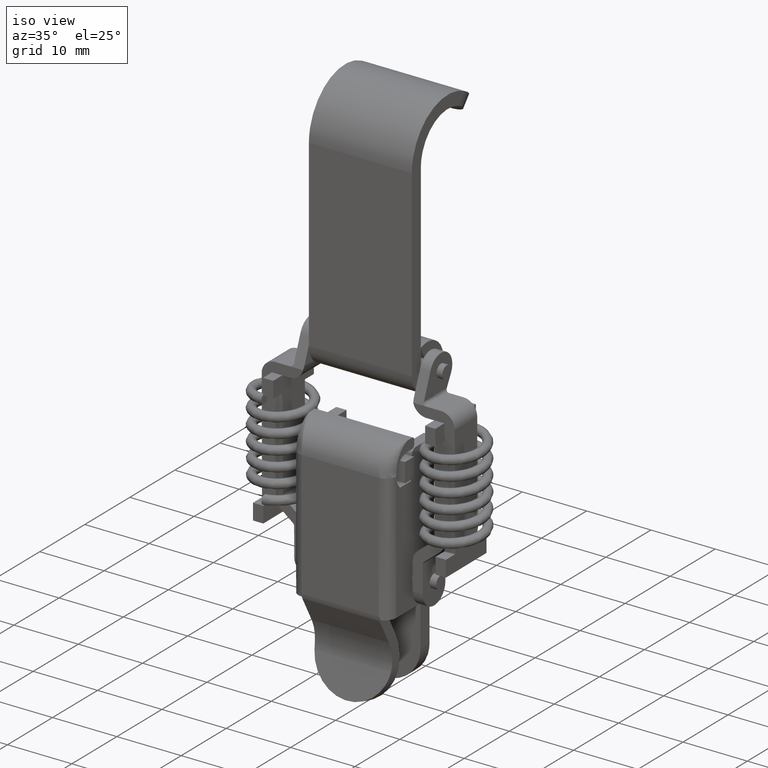
[diagram: clean part render]
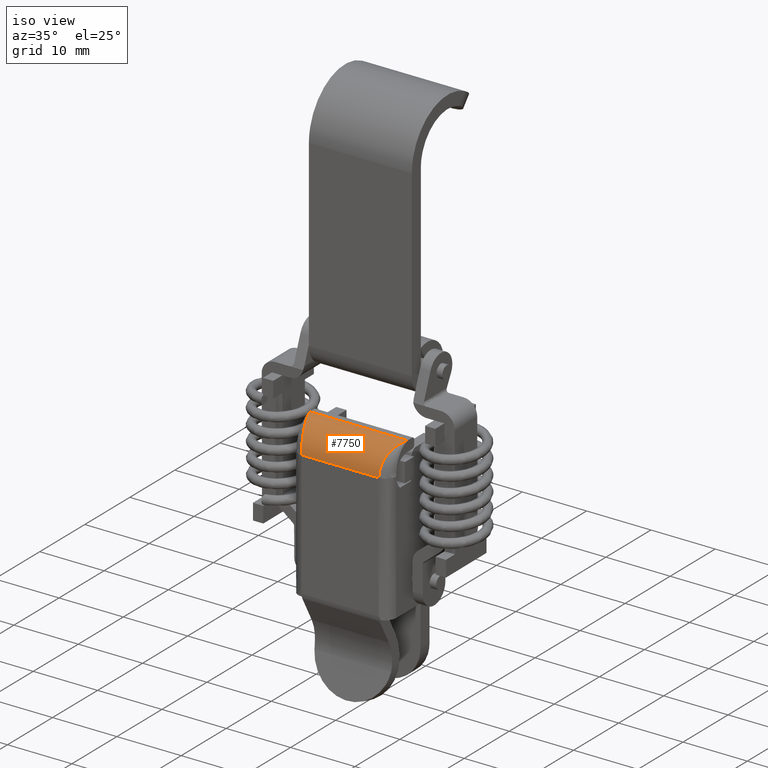
[diagram: same view with one face highlighted and labeled with its STEP entity id]
A machine part, iso view. The second image highlights one B-rep face of the part: STEP entity #7750.
In plain terms, the highlighted face is a freeform B-spline surface patch.
Its self-contained STEP definition (entity closure, byte-faithful):
#6743=CARTESIAN_POINT('',(-6.000006000000000,-9.0,-13.100005999999841));
#6744=VERTEX_POINT('',#6743);
#6759=CARTESIAN_POINT('',(5.999991000000000,-9.0,-13.100005999999841));
#6760=VERTEX_POINT('',#6759);
#6766=CARTESIAN_POINT('',(5.999991000000000,-9.0,-13.100005999999841));
#6767=CARTESIAN_POINT('',(-6.000006000000000,-9.0,-13.100005999999841));
#6768=QUASI_UNIFORM_CURVE('',1,(#6766,#6767),.UNSPECIFIED.,.F.,.U.);
#6769=EDGE_CURVE('',#6760,#6744,#6768,.T.);
#7167=CARTESIAN_POINT('',(7.599991000000000,-4.900000000000000,-9.000005999999850));
#7168=VERTEX_POINT('',#7167);
#7413=CARTESIAN_POINT('',(-7.600006000000001,-4.900000000000000,-9.000005999999850));
#7414=VERTEX_POINT('',#7413);
#7415=CARTESIAN_POINT('',(-7.600005999999993,-4.899999999999983,-9.000005999999839));
#7416=CARTESIAN_POINT('',(-7.596693890594399,-4.908888356679485,-9.000022670891203));
#7417=CARTESIAN_POINT('',(-7.590111405997187,-4.926553072355416,-9.000055802612472));
#7418=CARTESIAN_POINT('',(-7.580302454268716,-4.952881851192892,-9.000321231199486));
#7419=CARTESIAN_POINT('',(-7.570620307443866,-4.978873103046476,-9.000737076669058));
#7420=CARTESIAN_POINT('',(-7.561065115764546,-5.004525941605741,-9.001312329969361));
#7421=CARTESIAN_POINT('',(-7.551636839730702,-5.029839488351154,-9.002036630479923));
#7422=CARTESIAN_POINT('',(-7.542335489704995,-5.054812959125870,-9.002904801528102));
#7423=CARTESIAN_POINT('',(-7.533161062948525,-5.079445638189177,-9.003910403833242));
#7424=CARTESIAN_POINT('',(-7.524113560162840,-5.103736881871618,-9.005047429968885));
#7425=CARTESIAN_POINT('',(-7.515192981144504,-5.127686114489113,-9.006309860126594));
#7426=CARTESIAN_POINT('',(-7.506399325927428,-5.151292826327655,-9.007691779512381));
#7427=CARTESIAN_POINT('',(-7.497732594481271,-5.174556571120426,-9.009187348229064));
#7428=CARTESIAN_POINT('',(-7.489192786792039,-5.197476963697457,-9.010790809828270));
#7429=CARTESIAN_POINT('',(-7.480779902839703,-5.220053677627497,-9.012496489666123));
#7430=CARTESIAN_POINT('',(-7.472493942604197,-5.242286442901574,-9.014298795886436));
#7431=CARTESIAN_POINT('',(-7.464334906064655,-5.264175043645612,-9.016192219669239));
#7432=CARTESIAN_POINT('',(-7.456302793198279,-5.285719315864774,-9.018171335627836));
#7433=CARTESIAN_POINT('',(-7.448397603980527,-5.306919145220591,-9.020230802124617));
#7434=CARTESIAN_POINT('',(-7.440619338386398,-5.327774464841107,-9.022365361567410));
#7435=CARTESIAN_POINT('',(-7.432967996387400,-5.348285253162145,-9.024569840671578));
#7436=CARTESIAN_POINT('',(-7.425443577955952,-5.368451531804928,-9.026839150693776));
#7437=CARTESIAN_POINT('',(-7.418046083059644,-5.388273363483003,-9.029168287636610));
#7438=CARTESIAN_POINT('',(-7.410775511665618,-5.407750849946955,-9.031552332426696));
#7439=CARTESIAN_POINT('',(-7.403631863738033,-5.426884129960148,-9.033986451066410));
#7440=CARTESIAN_POINT('',(-7.396615139238819,-5.445673377310051,-9.036465894760912));
#7441=CARTESIAN_POINT('',(-7.389725338126987,-5.464118798853279,-9.038986000021543));
#7442=CARTESIAN_POINT('',(-7.382962460358134,-5.482220632595117,-9.041542188746487));
#7443=CARTESIAN_POINT('',(-7.376326505884775,-5.499979145803922,-9.044129968280206));
#7444=CARTESIAN_POINT('',(-7.369817474656367,-5.517394633160181,-9.046744931452318));
#7445=CARTESIAN_POINT('',(-7.363435366617413,-5.534467414939885,-9.049382756597199));
#7446=CARTESIAN_POINT('',(-7.357180181708732,-5.551197835233261,-9.052039207555310));
#7447=CARTESIAN_POINT('',(-7.351051919863048,-5.567586260198777,-9.054710133657423));
#7448=CARTESIAN_POINT('',(-7.345050581022917,-5.583633076352006,-9.057391469692179));
#7449=CARTESIAN_POINT('',(-7.339176165067212,-5.599338688886494,-9.060079235859401));
#7450=CARTESIAN_POINT('',(-7.333428672076933,-5.614703520044442,-9.062769537705984));
#7451=CARTESIAN_POINT('',(-7.327808101371881,-5.629728007468172,-9.065458566059409));
#7452=CARTESIAN_POINT('',(-7.322314454985170,-5.644412602782611,-9.068142596909322));
#7453=CARTESIAN_POINT('',(-7.316947725122940,-5.658757769507857,-9.070817991420256));
#7454=CARTESIAN_POINT('',(-7.311707939376378,-5.672763983546375,-9.073481195418683));
#7455=CARTESIAN_POINT('',(-7.306594997810037,-5.686431724557152,-9.076128740727020));
#7456=CARTESIAN_POINT('',(-7.276581779334585,-5.766674498065920,-9.091951816821689));
#7457=CARTESIAN_POINT('',(-7.223247086222714,-5.909184682604119,-9.124254624162338));
#7458=CARTESIAN_POINT('',(-7.148522520338159,-6.108323794085978,-9.180380442725451));
#7459=CARTESIAN_POINT('',(-7.078669974989973,-6.293879409891073,-9.242656108304720));
#7460=CARTESIAN_POINT('',(-6.985353315507398,-6.540986439251298,-9.338543222054010));
#7461=CARTESIAN_POINT('',(-6.872256146557454,-6.839038379838698,-9.480026396532805));
#7462=CARTESIAN_POINT('',(-6.738902666542665,-7.186957109845766,-9.689233857612630));
#7463=CARTESIAN_POINT('',(-6.615026621882430,-7.506805504641637,-9.926887892670164));
#7464=CARTESIAN_POINT('',(-6.497202087292642,-7.806908281168445,-10.199375504007611));
#7465=CARTESIAN_POINT('',(-6.390336049923561,-8.075218294394988,-10.495755289989910));
#7466=CARTESIAN_POINT('',(-6.308813880210643,-8.276350275143445,-10.767305309492400));
#7467=CARTESIAN_POINT('',(-6.249897272369816,-8.419797882822083,-10.994076449038751));
#7468=CARTESIAN_POINT('',(-6.208503343218709,-8.519572365111410,-11.170704000223999));
#7469=CARTESIAN_POINT('',(-6.170924904584524,-8.609193571650094,-11.349295616501990));
#7470=CARTESIAN_POINT('',(-6.136508848931447,-8.690387244606479,-11.532707201429950));
#7471=CARTESIAN_POINT('',(-6.105456501723548,-8.762840914695161,-11.720760721044480));
#7472=CARTESIAN_POINT('',(-6.077967977978958,-8.826204581347234,-11.913234336450280));
#7473=CARTESIAN_POINT('',(-6.054610090530375,-8.879363101945787,-12.106105485951881));
#7474=CARTESIAN_POINT('',(-6.039919493380513,-8.912361537554032,-12.253348120600920));
#7475=CARTESIAN_POINT('',(-6.031266337556853,-8.931653914460471,-12.353839932161060));
#7476=CARTESIAN_POINT('',(-6.026953697749842,-8.941234987557413,-12.407610683857200));
#7477=CARTESIAN_POINT('',(-6.022960455516358,-8.950074307544819,-12.461348168436951));
#7478=CARTESIAN_POINT('',(-6.019286581457584,-8.958176614647940,-12.515042248007450));
#7479=CARTESIAN_POINT('',(-6.015932083940743,-8.965546658799669,-12.568682472488311));
#7480=CARTESIAN_POINT('',(-6.012896960313579,-8.972189354613057,-12.622258662911580));
#7481=CARTESIAN_POINT('',(-6.010181214410975,-8.978109726114875,-12.675760757102911));
#7482=CARTESIAN_POINT('',(-6.007784835182820,-8.983312952157121,-12.729178851940370));
#7483=CARTESIAN_POINT('',(-6.005707864428592,-8.987804219350419,-12.782503193112071));
#7484=CARTESIAN_POINT('',(-6.003950148316327,-8.991589241636252,-12.835724178779470));
#7485=CARTESIAN_POINT('',(-6.002512259522667,-8.994672316683621,-12.888832359469180));
#7486=CARTESIAN_POINT('',(-6.001392072097813,-8.997063528499147,-12.941818438802020));
#7487=CARTESIAN_POINT('',(-6.000597484782051,-8.998751975820996,-12.994673274227640));
#7488=CARTESIAN_POINT('',(-6.000099155782209,-8.999805208533179,-13.047387876516080));
#7489=CARTESIAN_POINT('',(-6.000037020513735,-8.999935135197886,-13.082484369185281));
#7490=CARTESIAN_POINT('',(-6.000005999999947,-9.000000000000002,-13.100005999999841));
#7491=B_SPLINE_CURVE_WITH_KNOTS('',3,(#7415,#7416,#7417,#7418,#7419,#7420,#7421,#7422,#7423,#7424,#7425,#7426,#7427,#7428,#7429,#7430,#7431,#7432,#7433,#7434,#7435,#7436,#7437,#7438,#7439,#7440,#7441,#7442,#7443,#7444,#7445,#7446,#7447,#7448,#7449,#7450,#7451,#7452,#7453,#7454,#7455,#7456,#7457,#7458,#7459,#7460,#7461,#7462,#7463,#7464,#7465,#7466,#7467,#7468,#7469,#7470,#7471,#7472,#7473,#7474,#7475,#7476,#7477,#7478,#7479,#7480,#7481,#7482,#7483,#7484,#7485,#7486,#7487,#7488,#7489,#7490),.UNSPECIFIED.,.F.,.U.,(4,1,1,1,1,1,1,1,1,1,1,1,1,1,1,1,1,1,1,1,1,1,1,1,1,1,1,1,1,1,1,1,1,1,1,1,1,1,1,1,1,1,1,1,1,1,1,1,1,1,1,1,1,1,1,1,1,1,1,1,1,1,1,1,1,1,1,1,1,1,1,1,1,4),(0.0,0.004265295429993,0.008476846031439,0.012634651816704,0.016738712799012,0.020789028992396,0.024785600411769,0.028728427072991,0.032617508992901,0.036452846189378,0.040234438681362,0.043962286488957,0.047636389633450,0.051256748137413,0.054823362024764,0.058336231320814,0.061795356052404,0.065200736247972,0.068552371937621,0.071850263153291,0.075094409928760,0.078284812299912,0.081421470304761,0.084504383983642,0.087533553379349,0.090508978537332,0.093430659505879,0.096298596336307,0.099112789083179,0.101873237804598,0.104579942562459,0.107232903422709,0.109832120455732,0.112377593736698,0.114869323345964,0.117307309369529,0.119691551899514,0.122022051034769,0.124298806881462,0.126521819553767,0.128691089174706,0.163474607970759,0.196435358535277,0.227573719086228,0.256890151156247,0.322766707366559,0.384133908371525,0.448789248021460,0.510101543099864,0.573678028049338,0.634569674784822,0.666150509666875,0.697167556416413,0.727627914669272,0.757539080718272,0.788642416385793,0.819276114428349,0.849450474478981,0.879176273793181,0.887415460001257,0.895627178358951,0.903811684984638,0.911969238559793,0.920100100338434,0.928204534155928,0.936282806437070,0.944335186203472,0.952361945080197,0.960363357301604,0.968339699716416,0.976291251791959,0.984218295617531,0.992121115906923,1.0),.UNSPECIFIED.);
#7492=EDGE_CURVE('',#7414,#6744,#7491,.T.);
#7605=CARTESIAN_POINT('',(5.999991000000038,-9.000000000000002,-13.100005999999841));
#7606=CARTESIAN_POINT('',(5.999999333480806,-8.999982677521654,-13.090950681499800));
#7607=CARTESIAN_POINT('',(6.000016013537105,-8.999948005345388,-13.072825815482149));
#7608=CARTESIAN_POINT('',(6.000149396151612,-8.999667233535563,-13.045618549129220));
#7609=CARTESIAN_POINT('',(6.000362062184632,-8.999218029805492,-13.018371267554700));
#7610=CARTESIAN_POINT('',(6.000661826998553,-8.998583129954509,-12.991085188584959));
#7611=CARTESIAN_POINT('',(6.001046591491680,-8.997766130343671,-12.963761541037110));
#7612=CARTESIAN_POINT('',(6.001516919443461,-8.996765033410942,-12.936401564876160));
#7613=CARTESIAN_POINT('',(6.002072659414729,-8.995579353135419,-12.909006511155511));
#7614=CARTESIAN_POINT('',(6.002713852067338,-8.994208206747807,-12.881577642014159));
#7615=CARTESIAN_POINT('',(6.003440486465810,-8.992650827441334,-12.854116230656970));
#7616=CARTESIAN_POINT('',(6.004252565535047,-8.990906426821113,-12.826623561338209));
#7617=CARTESIAN_POINT('',(6.005150088475831,-8.988974232011096,-12.799100929342361));
#7618=CARTESIAN_POINT('',(6.006133055488842,-8.986853475848958,-12.771549640964180));
#7619=CARTESIAN_POINT('',(6.007201466508060,-8.984543399682131,-12.743971013487480));
#7620=CARTESIAN_POINT('',(6.008355321537803,-8.982043252779722,-12.716366375162430));
#7621=CARTESIAN_POINT('',(6.009594620564058,-8.979352292653822,-12.688737065181749));
#7622=CARTESIAN_POINT('',(6.010919363577341,-8.976469785137164,-12.661084433655510));
#7623=CARTESIAN_POINT('',(6.012329550568170,-8.973395004526759,-12.633409841584870));
#7624=CARTESIAN_POINT('',(6.013825181525584,-8.970127233710056,-12.605714660833691));
#7625=CARTESIAN_POINT('',(6.015406256440258,-8.966665764296833,-12.578000274101040));
#7626=CARTESIAN_POINT('',(6.017072775302244,-8.963009896748373,-12.550268074885610));
#7627=CARTESIAN_POINT('',(6.018824738100853,-8.959158940513563,-12.522519467472200));
#7628=CARTESIAN_POINT('',(6.020662144832079,-8.955112214142268,-12.494755866830991));
#7629=CARTESIAN_POINT('',(6.022584995462987,-8.950869045484708,-12.466978698835129));
#7630=CARTESIAN_POINT('',(6.024593290071032,-8.946428771570888,-12.439189399281791));
#7631=CARTESIAN_POINT('',(6.026687028321835,-8.941790739688505,-12.411389417383470));
#7632=CARTESIAN_POINT('',(6.028866211420781,-8.936954303977911,-12.383580202526110));
#7633=CARTESIAN_POINT('',(6.031130834814637,-8.931918838802478,-12.355763253631819));
#7634=CARTESIAN_POINT('',(6.033480915495918,-8.926683689350785,-12.327939934264061));
#7635=CARTESIAN_POINT('',(6.040759564819980,-8.910439676128490,-12.244773966970561));
#7636=CARTESIAN_POINT('',(6.054591424370402,-8.879369211559485,-12.106131476640130));
#7637=CARTESIAN_POINT('',(6.077948005630959,-8.826215841033807,-11.913271614975200));
#7638=CARTESIAN_POINT('',(6.105438358008214,-8.762850427143734,-11.720786200346581));
#7639=CARTESIAN_POINT('',(6.136490062007124,-8.690396142757932,-11.532728714858310));
#7640=CARTESIAN_POINT('',(6.170904264460337,-8.609204804971743,-11.349320290749530));
#7641=CARTESIAN_POINT('',(6.208480693885544,-8.519590609640725,-11.170738232319390));
#7642=CARTESIAN_POINT('',(6.249877203148939,-8.419812194471007,-10.994099610937029));
#7643=CARTESIAN_POINT('',(6.308792245901883,-8.276365425725384,-10.767327674951630));
#7644=CARTESIAN_POINT('',(6.390317134735487,-8.075228224536478,-10.495767366916629));
#7645=CARTESIAN_POINT('',(6.497178467323696,-7.806930092755912,-10.199397360940120));
#7646=CARTESIAN_POINT('',(6.615006849790680,-7.506817535970596,-9.926897747173840));
#7647=CARTESIAN_POINT('',(6.738877882437341,-7.186982651559089,-9.689250972338096));
#7648=CARTESIAN_POINT('',(6.872235823278063,-6.839051986026161,-9.480033658913269));
#7649=CARTESIAN_POINT('',(6.985329215693845,-6.541010929458988,-9.338553608951143));
#7650=CARTESIAN_POINT('',(7.078645476309971,-6.293903926656638,-9.242665333675115));
#7651=CARTESIAN_POINT('',(7.148493844912506,-6.108359606434963,-9.180391484945590));
#7652=CARTESIAN_POINT('',(7.223223462229508,-5.909210204228645,-9.124260686724313));
#7653=CARTESIAN_POINT('',(7.278638245800718,-5.761134524194871,-9.090695755083353));
#7654=CARTESIAN_POINT('',(7.313003995642544,-5.669258217047747,-9.072777182496981));
#7655=CARTESIAN_POINT('',(7.324881516029209,-5.637511047828096,-9.066838098097716));
#7656=CARTESIAN_POINT('',(7.337385684911949,-5.604085872138444,-9.060864203895092));
#7657=CARTESIAN_POINT('',(7.350517004177965,-5.568977767165508,-9.054896427855979));
#7658=CARTESIAN_POINT('',(7.364275334936162,-5.532182144512298,-9.048977784233346));
#7659=CARTESIAN_POINT('',(7.378660721988841,-5.493694875233782,-9.043153370146751));
#7660=CARTESIAN_POINT('',(7.393673156582456,-5.453512370977300,-9.037470369722421));
#7661=CARTESIAN_POINT('',(7.409312644668468,-5.411631683190967,-9.031978054182202));
#7662=CARTESIAN_POINT('',(7.425579187467888,-5.368050602548837,-9.026727777934962));
#7663=CARTESIAN_POINT('',(7.442472787183990,-5.322767763721898,-9.021772981917609));
#7664=CARTESIAN_POINT('',(7.459993445164657,-5.275782753817360,-9.017169154699005));
#7665=CARTESIAN_POINT('',(7.478141163605253,-5.227096225556503,-9.012973945892533));
#7666=CARTESIAN_POINT('',(7.496915940700752,-5.176710012248518,-9.009246665008744));
#7667=CARTESIAN_POINT('',(7.516317789369314,-5.124627255367187,-9.006050174634305));
#7668=CARTESIAN_POINT('',(7.536346664181353,-5.070852502108314,-9.003443384197906));
#7669=CARTESIAN_POINT('',(7.557002747186727,-5.015391939224043,-9.001510492077509));
#7670=CARTESIAN_POINT('',(7.578285331835300,-4.958253112826897,-9.000246657546899));
#7671=CARTESIAN_POINT('',(7.592687052021466,-4.919602147349049,-9.000086981160660));
#7672=CARTESIAN_POINT('',(7.599990999999973,-4.899999999999983,-9.000005999999839));
#7673=B_SPLINE_CURVE_WITH_KNOTS('',3,(#7605,#7606,#7607,#7608,#7609,#7610,#7611,#7612,#7613,#7614,#7615,#7616,#7617,#7618,#7619,#7620,#7621,#7622,#7623,#7624,#7625,#7626,#7627,#7628,#7629,#7630,#7631,#7632,#7633,#7634,#7635,#7636,#7637,#7638,#7639,#7640,#7641,#7642,#7643,#7644,#7645,#7646,#7647,#7648,#7649,#7650,#7651,#7652,#7653,#7654,#7655,#7656,#7657,#7658,#7659,#7660,#7661,#7662,#7663,#7664,#7665,#7666,#7667,#7668,#7669,#7670,#7671,#7672),.UNSPECIFIED.,.F.,.U.,(4,1,1,1,1,1,1,1,1,1,1,1,1,1,1,1,1,1,1,1,1,1,1,1,1,1,1,1,1,1,1,1,1,1,1,1,1,1,1,1,1,1,1,1,1,1,1,1,1,1,1,1,1,1,1,1,1,1,1,1,1,1,1,1,1,4),(0.0,0.004071893973907,0.008150186292704,0.012234916985470,0.016326125892299,0.020423852664331,0.024528136763801,0.028639017464100,0.032756533849867,0.036880724817074,0.041011629073158,0.045149285137148,0.049293731339812,0.053445005823833,0.057603146543979,0.061768191267313,0.065940177573398,0.070119142854532,0.074305124315982,0.078498158976255,0.082698283667357,0.086905535035097,0.091119949539364,0.095341563454460,0.099570412869420,0.103806533688350,0.108049961630791,0.112300732232067,0.116558880843672,0.120824442633672,0.150544961882551,0.180717556234530,0.211353004943640,0.242461605974519,0.272367436483523,0.302826010690913,0.333844826280036,0.365430981734982,0.426315433816967,0.489899082248975,0.551204115542096,0.615866685216847,0.677226598449879,0.743110410012423,0.772421466437998,0.803558029829125,0.836520561639643,0.871309439826434,0.876201969215870,0.881360018614698,0.886783589057955,0.892472681400410,0.898427296346930,0.904647434476529,0.911133096261389,0.917884282082205,0.924900992240562,0.932183226969112,0.939730986439942,0.947544270771493,0.955623080034405,0.963967414256365,0.972577273426220,0.981452657497569,0.990593566391643,1.0),.UNSPECIFIED.);
#7674=EDGE_CURVE('',#6760,#7168,#7673,.T.);
#7726=CARTESIAN_POINT('',(7.979990925000001,-4.792674511937718,-9.001410967600055));
#7727=CARTESIAN_POINT('',(-7.989505923125002,-4.792674511937718,-9.001410967600055));
#7728=CARTESIAN_POINT('',(7.979990925000000,-9.307437682274353,-8.883187733318161));
#7729=CARTESIAN_POINT('',(-7.989505923125001,-9.307437682274353,-8.883187733318161));
#7730=CARTESIAN_POINT('',(7.979990925000002,-8.989850365461322,-13.388318310066371));
#7731=CARTESIAN_POINT('',(-7.989505923125003,-8.989850365461322,-13.388318310066371));
#7739=(BOUNDED_SURFACE()B_SPLINE_SURFACE(1,2,((#7726,#7728,#7730),(#7727,#7729,#7731)),.UNSPECIFIED.,.F.,.F.,.U.)B_SPLINE_SURFACE_WITH_KNOTS((2,2),(3,3),(0.0,15.969496848125010),(0.0,7.261683610762298),.UNSPECIFIED.)GEOMETRIC_REPRESENTATION_ITEM()RATIONAL_B_SPLINE_SURFACE(((1.0,0.670944223154768,0.996392648609106),(1.0,0.670944223154768,0.996392648609106)))REPRESENTATION_ITEM('')SURFACE());
#7740=ORIENTED_EDGE('',*,*,#6769,.F.);
#7741=ORIENTED_EDGE('',*,*,#7674,.T.);
#7742=CARTESIAN_POINT('',(-7.600006000000001,-4.900000000000000,-9.000005999999850));
#7743=CARTESIAN_POINT('',(7.599991000000000,-4.900000000000000,-9.000005999999850));
#7744=QUASI_UNIFORM_CURVE('',1,(#7742,#7743),.UNSPECIFIED.,.F.,.U.);
#7745=EDGE_CURVE('',#7414,#7168,#7744,.T.);
#7746=ORIENTED_EDGE('',*,*,#7745,.F.);
#7747=ORIENTED_EDGE('',*,*,#7492,.T.);
#7748=EDGE_LOOP('',(#7740,#7741,#7746,#7747));
#7749=FACE_OUTER_BOUND('',#7748,.T.);
#7750=ADVANCED_FACE('',(#7749),#7739,.T.);